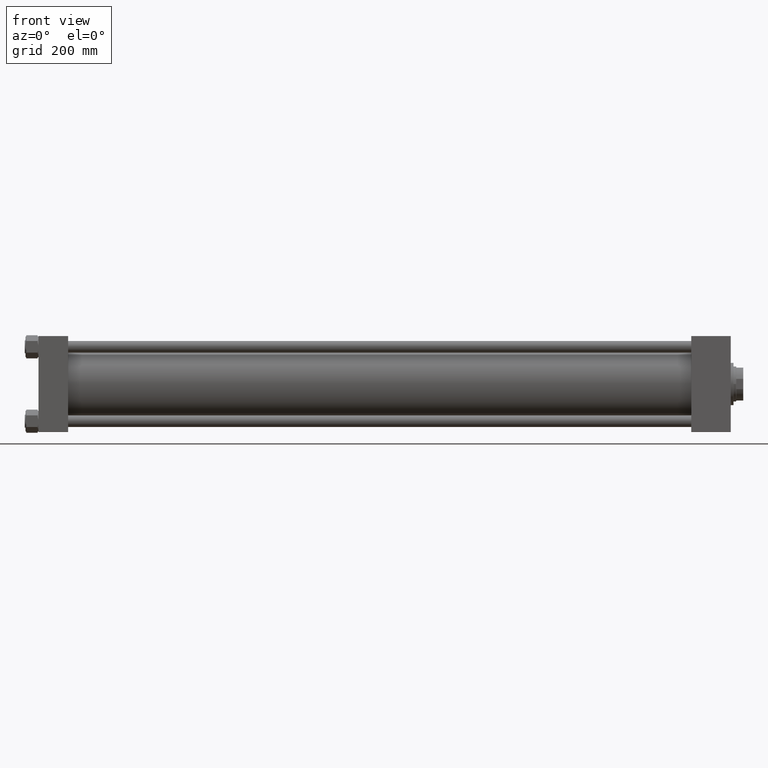
[diagram: clean part render]
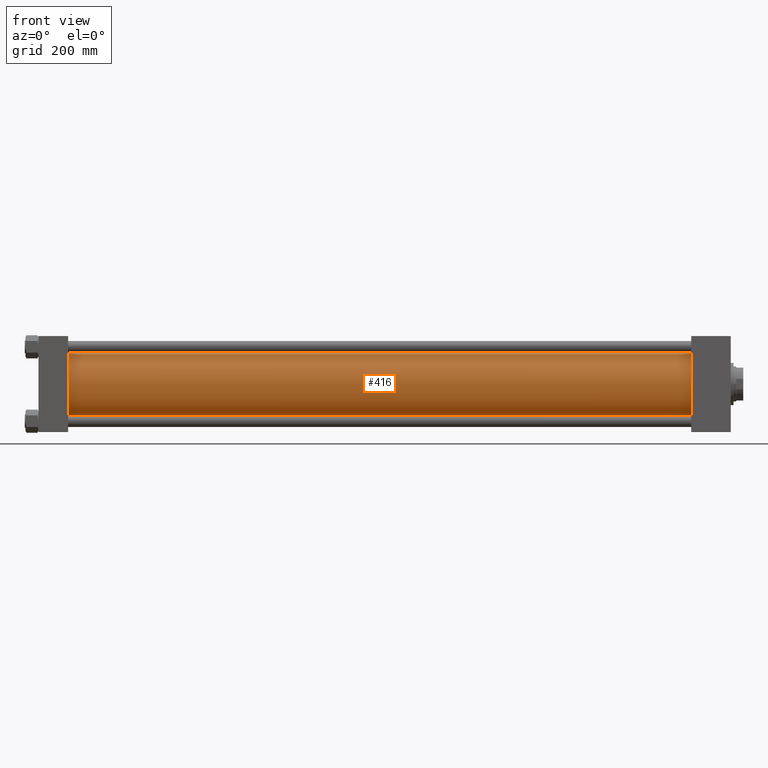
[diagram: same view with one face highlighted and labeled with its STEP entity id]
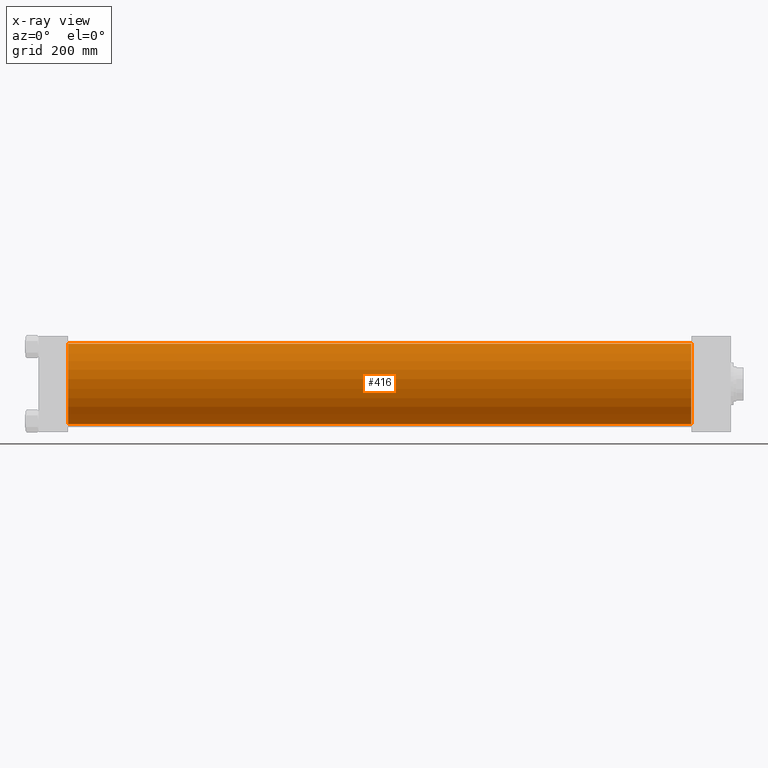
[diagram: x-ray of the same camera — body ghosted, the highlighted face saturated]
A machine part, front view. The second image highlights one B-rep face of the part: STEP entity #416.
The next image is the same camera in x-ray: the body ghosted, the highlighted face saturated — about 0% of this face is hidden behind the body in this view.
In plain terms, the highlighted cylindrical surface (partial cylindrical patch) has radius 103 mm, axis along (-1, -0, -0).
Its self-contained STEP definition (entity closure, byte-faithful):
#233 = EDGE_CURVE ( 'NONE', #2203, #43148, #14047, .T. ) ;
#416 = ADVANCED_FACE ( 'NONE', ( #1424 ), #41944, .T. ) ;
#1424 = FACE_OUTER_BOUND ( 'NONE', #12084, .T. ) ;
#1455 = ORIENTED_EDGE ( 'NONE', *, *, #233, .F. ) ;
#2203 = VERTEX_POINT ( 'NONE', #44074 ) ;
#2911 = DIRECTION ( 'NONE',  ( 1.000000000000000000, 0.000000000000000000, 0.000000000000000000 ) ) ;
#3645 = DIRECTION ( 'NONE',  ( 0.000000000000000000, 0.000000000000000000, 1.000000000000000000 ) ) ;
#3775 = AXIS2_PLACEMENT_3D ( 'NONE', #15449, #43409, #3645 ) ;
#4946 = AXIS2_PLACEMENT_3D ( 'NONE', #27259, #2911, #19289 ) ;
#10258 = AXIS2_PLACEMENT_3D ( 'NONE', #22194, #38098, #34253 ) ;
#11987 = VERTEX_POINT ( 'NONE', #20109 ) ;
#12084 = EDGE_LOOP ( 'NONE', ( #1455, #28771, #21840, #44280 ) ) ;
#14047 = LINE ( 'NONE', #37914, #44670 ) ;
#14487 = CARTESIAN_POINT ( 'NONE',  ( 76.00000000000007105, 1.001177681725252697E-14, -103.0000000000000000 ) ) ;
#15449 = CARTESIAN_POINT ( 'NONE',  ( 76.00000000000007105, -2.602085213965210642E-15, 0.000000000000000000 ) ) ;
#18160 = VERTEX_POINT ( 'NONE', #43426 ) ;
#19289 = DIRECTION ( 'NONE',  ( 0.000000000000000000, 0.000000000000000000, -1.000000000000000000 ) ) ;
#20021 = EDGE_CURVE ( 'NONE', #18160, #2203, #42635, .T. ) ;
#20109 = CARTESIAN_POINT ( 'NONE',  ( 76.00000000000007105, -2.602085213965210642E-15, 103.0000000000000000 ) ) ;
#21840 = ORIENTED_EDGE ( 'NONE', *, *, #38105, .T. ) ;
#22194 = CARTESIAN_POINT ( 'NONE',  ( 1668.000000000000227, -2.602085213965210642E-15, 0.000000000000000000 ) ) ;
#26041 = DIRECTION ( 'NONE',  ( -1.000000000000000000, -0.000000000000000000, -0.000000000000000000 ) ) ;
#27259 = CARTESIAN_POINT ( 'NONE',  ( 1668.000000000000227, -2.602085213965210642E-15, 0.000000000000000000 ) ) ;
#28771 = ORIENTED_EDGE ( 'NONE', *, *, #20021, .F. ) ;
#28868 = CARTESIAN_POINT ( 'NONE',  ( 1668.000000000000227, -2.602085213965210642E-15, 103.0000000000000000 ) ) ;
#34253 = DIRECTION ( 'NONE',  ( 0.000000000000000000, 0.000000000000000000, 1.000000000000000000 ) ) ;
#37419 = CIRCLE ( 'NONE', #3775, 103.0000000000000000 ) ;
#37606 = LINE ( 'NONE', #28868, #42207 ) ;
#37914 = CARTESIAN_POINT ( 'NONE',  ( 1668.000000000000227, 1.001177681725252697E-14, -103.0000000000000000 ) ) ;
#38098 = DIRECTION ( 'NONE',  ( -1.000000000000000000, -0.000000000000000000, -0.000000000000000000 ) ) ;
#38105 = EDGE_CURVE ( 'NONE', #18160, #11987, #37606, .T. ) ;
#38158 = DIRECTION ( 'NONE',  ( -1.000000000000000000, -0.000000000000000000, -0.000000000000000000 ) ) ;
#41129 = EDGE_CURVE ( 'NONE', #11987, #43148, #37419, .T. ) ;
#41944 = CYLINDRICAL_SURFACE ( 'NONE', #10258, 103.0000000000000000 ) ;
#42207 = VECTOR ( 'NONE', #26041, 1000.000000000000000 ) ;
#42635 = CIRCLE ( 'NONE', #4946, 103.0000000000000000 ) ;
#43148 = VERTEX_POINT ( 'NONE', #14487 ) ;
#43409 = DIRECTION ( 'NONE',  ( 1.000000000000000000, -0.000000000000000000, -0.000000000000000000 ) ) ;
#43426 = CARTESIAN_POINT ( 'NONE',  ( 1668.000000000000227, -2.602085213965210642E-15, 103.0000000000000000 ) ) ;
#44074 = CARTESIAN_POINT ( 'NONE',  ( 1668.000000000000227, 1.001177681725252697E-14, -103.0000000000000000 ) ) ;
#44280 = ORIENTED_EDGE ( 'NONE', *, *, #41129, .T. ) ;
#44670 = VECTOR ( 'NONE', #38158, 1000.000000000000000 ) ;